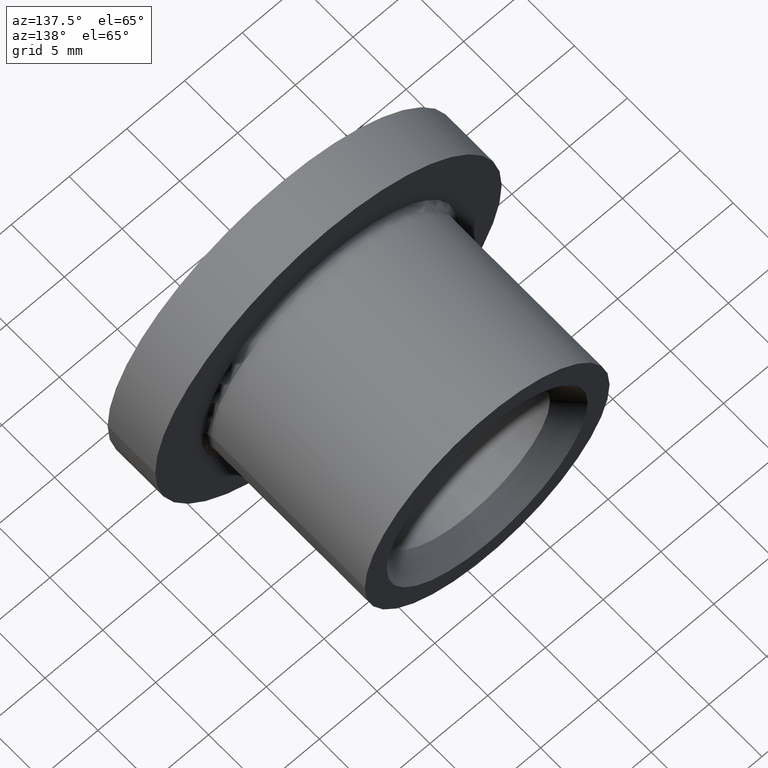
[diagram: clean part render]
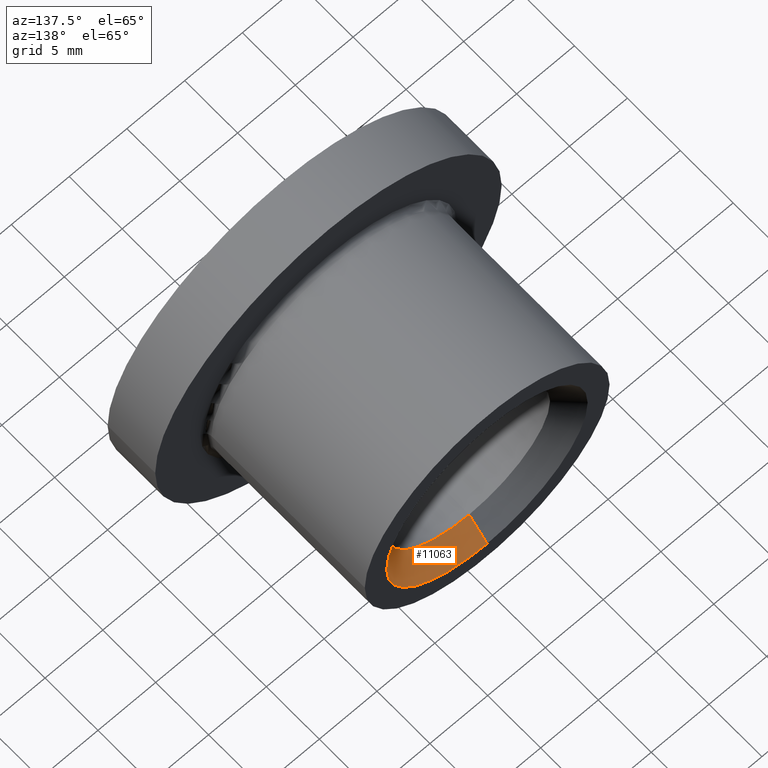
[diagram: same view with one face highlighted and labeled with its STEP entity id]
A machine part, auxiliary view. The second image highlights one B-rep face of the part: STEP entity #11063.
In plain terms, the highlighted conical surface has half-angle 45 deg.
Its self-contained STEP definition (entity closure, byte-faithful):
#247 = LINE ( 'NONE', #4058, #11660 ) ;
#346 = DIRECTION ( 'NONE',  ( 0.0000000000000000000, 0.0000000000000000000, 1.000000000000000000 ) ) ;
#521 = CARTESIAN_POINT ( 'NONE',  ( 2.449293598294700000E-016, 17.80000000000000800, -6.999999999999998200 ) ) ;
#662 = AXIS2_PLACEMENT_3D ( 'NONE', #5224, #5185, #346 ) ;
#810 = VERTEX_POINT ( 'NONE', #7049 ) ;
#1071 = EDGE_CURVE ( 'NONE', #6838, #8212, #1871, .T. ) ;
#1074 = CARTESIAN_POINT ( 'NONE',  ( 4.531193156845202300E-016, 19.50000000000000400, -8.699999999999999300 ) ) ;
#1123 = VECTOR ( 'NONE', #5029, 1000.000000000000000 ) ;
#1538 = DIRECTION ( 'NONE',  ( -0.0000000000000000000, 1.000000000000000000, -0.0000000000000000000 ) ) ;
#1749 = ORIENTED_EDGE ( 'NONE', *, *, #9519, .F. ) ;
#1774 = ORIENTED_EDGE ( 'NONE', *, *, #7553, .T. ) ;
#1871 = LINE ( 'NONE', #7916, #1123 ) ;
#2326 = CARTESIAN_POINT ( 'NONE',  ( -6.123233995736770200E-016, 19.50000000000000400, 8.699999999999999300 ) ) ;
#2837 = AXIS2_PLACEMENT_3D ( 'NONE', #11865, #1538, #3342 ) ;
#2856 = DIRECTION ( 'NONE',  ( 0.0000000000000000000, 0.7071067811865464600, 0.7071067811865486800 ) ) ;
#3342 = DIRECTION ( 'NONE',  ( 0.0000000000000000000, 0.0000000000000000000, 1.000000000000000000 ) ) ;
#3973 = CONICAL_SURFACE ( 'NONE', #662, 8.699999999999999300, 0.7853981633974498300 ) ;
#4058 = CARTESIAN_POINT ( 'NONE',  ( -6.123233995736770200E-016, 19.50000000000000400, 8.699999999999999300 ) ) ;
#4470 = EDGE_LOOP ( 'NONE', ( #6846, #1749, #9615, #1774 ) ) ;
#5029 = DIRECTION ( 'NONE',  ( 8.659560562354947600E-017, 0.7071067811865464600, -0.7071067811865486800 ) ) ;
#5185 = DIRECTION ( 'NONE',  ( -0.0000000000000000000, 1.000000000000000000, -0.0000000000000000000 ) ) ;
#5224 = CARTESIAN_POINT ( 'NONE',  ( -6.123233995736770200E-016, 19.50000000000000400, 0.0000000000000000000 ) ) ;
#5398 = CIRCLE ( 'NONE', #2837, 6.999999999999997300 ) ;
#6091 = DIRECTION ( 'NONE',  ( -0.0000000000000000000, 1.000000000000000000, -0.0000000000000000000 ) ) ;
#6838 = VERTEX_POINT ( 'NONE', #521 ) ;
#6846 = ORIENTED_EDGE ( 'NONE', *, *, #1071, .F. ) ;
#7049 = CARTESIAN_POINT ( 'NONE',  ( -6.123233995736770200E-016, 17.80000000000000800, 6.999999999999997300 ) ) ;
#7050 = DIRECTION ( 'NONE',  ( 0.0000000000000000000, 0.0000000000000000000, 1.000000000000000000 ) ) ;
#7553 = EDGE_CURVE ( 'NONE', #7577, #8212, #10495, .T. ) ;
#7556 = FACE_OUTER_BOUND ( 'NONE', #4470, .T. ) ;
#7577 = VERTEX_POINT ( 'NONE', #2326 ) ;
#7916 = CARTESIAN_POINT ( 'NONE',  ( 4.531193156845202300E-016, 19.50000000000000400, -8.699999999999999300 ) ) ;
#7968 = EDGE_CURVE ( 'NONE', #810, #7577, #247, .T. ) ;
#8212 = VERTEX_POINT ( 'NONE', #1074 ) ;
#9519 = EDGE_CURVE ( 'NONE', #810, #6838, #5398, .T. ) ;
#9615 = ORIENTED_EDGE ( 'NONE', *, *, #7968, .T. ) ;
#10495 = CIRCLE ( 'NONE', #11522, 8.699999999999999300 ) ;
#11063 = ADVANCED_FACE ( 'NONE', ( #7556 ), #3973, .F. ) ;
#11522 = AXIS2_PLACEMENT_3D ( 'NONE', #11814, #6091, #7050 ) ;
#11660 = VECTOR ( 'NONE', #2856, 1000.000000000000000 ) ;
#11814 = CARTESIAN_POINT ( 'NONE',  ( -6.123233995736770200E-016, 19.50000000000000400, 0.0000000000000000000 ) ) ;
#11865 = CARTESIAN_POINT ( 'NONE',  ( -6.123233995736770200E-016, 17.80000000000000800, 0.0000000000000000000 ) ) ;